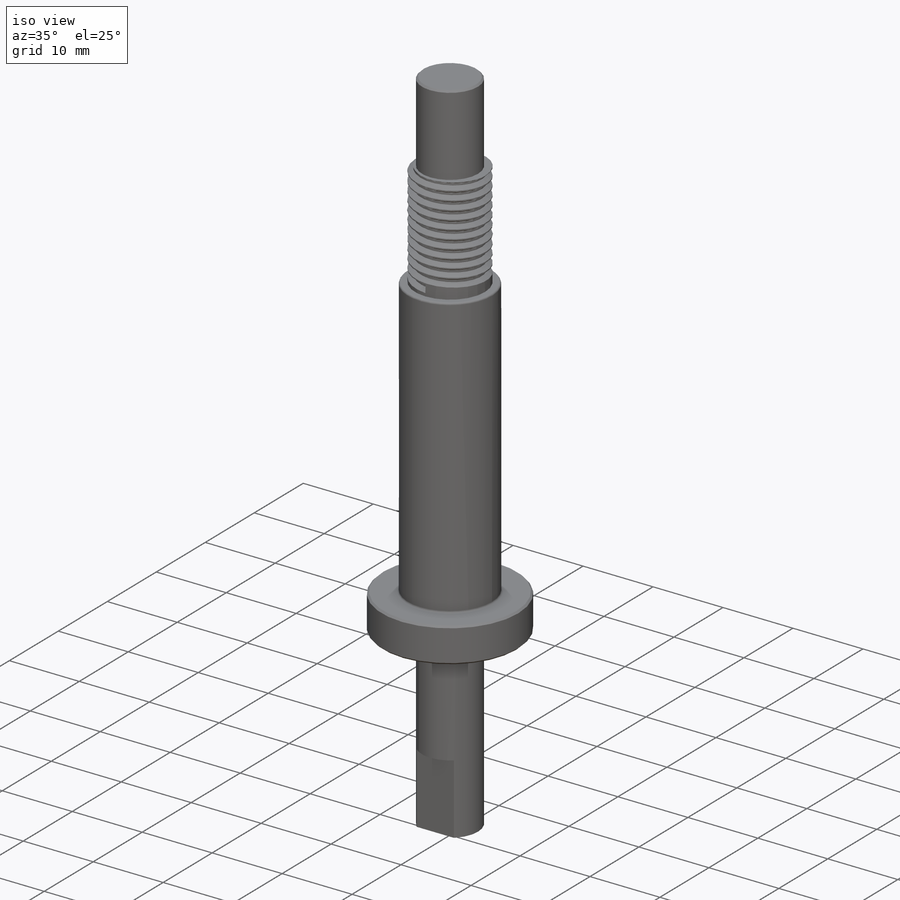
[diagram: iso view]
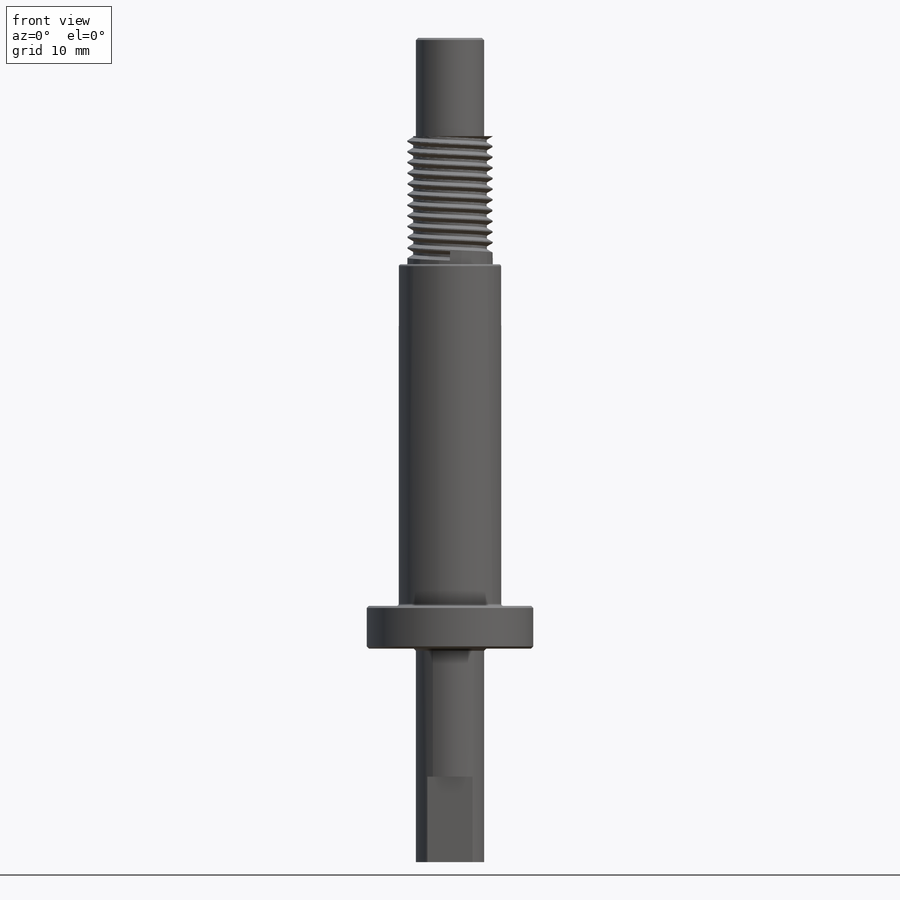
[diagram: front view]
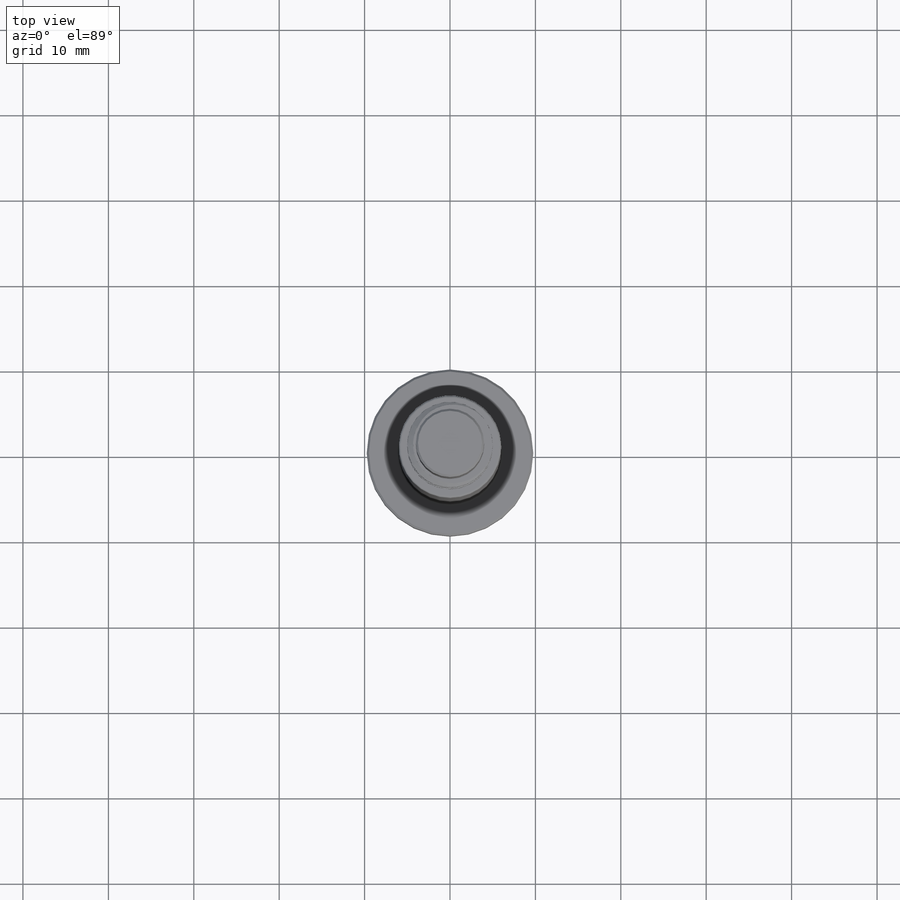
[diagram: top view]
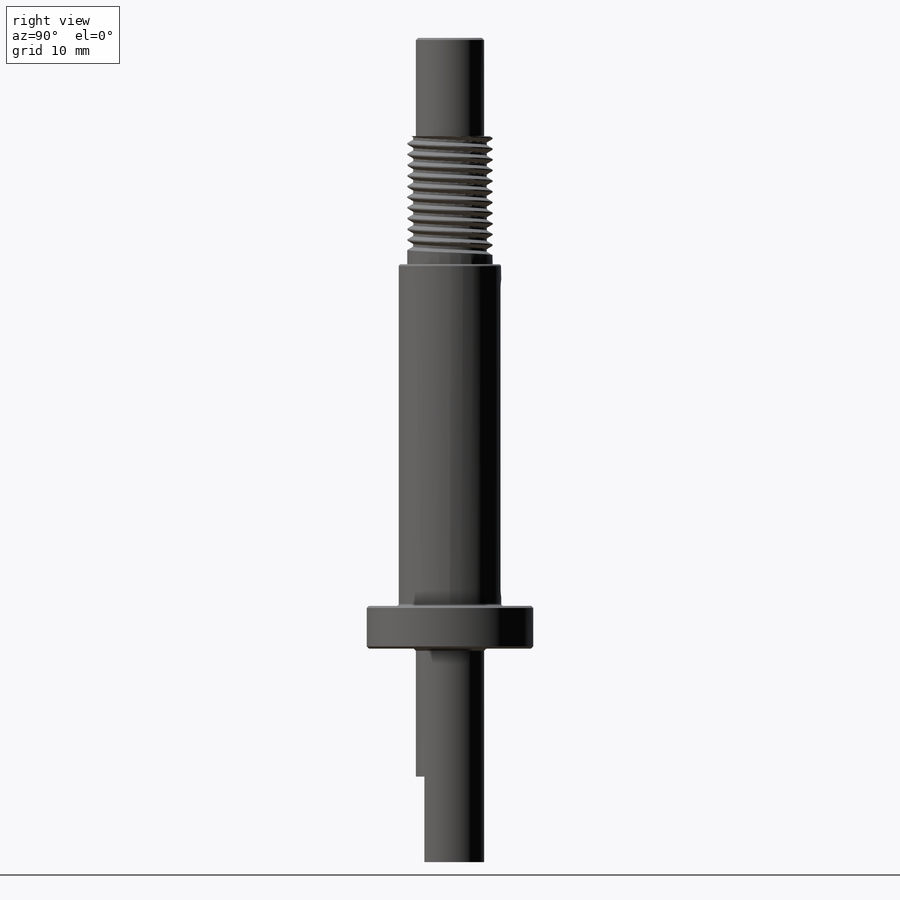
[diagram: right view]
SOLIDWORKS PART (.sldprt)
format: sldprt  version: not decoded by parser v0  size: 453,632 bytes
history: native  units: mm
features: sketch x10, extrude x5, plane x3, cut_extrude x2, chamfer x2, material x1, helix x1, sweep x1, fillet x1 (+13 scaffold rows collapsed)
feature tree (39):
  scaffold x13  (default folders/planes/origin — collapsed)
  material  "6061 Alloy"
  sketch  "Sketch1"  dims[D1=19.5mm]
  extrude  "Boss-Extrude1"  Depth=5mm
  sketch  "Sketch2"  dims[D1=12.0mm]
  extrude  "Boss-Extrude2"  Depth=40mm
  sketch  "Sketch3"  dims[D1=8.0mm]
  extrude  "Boss-Extrude3"  Depth=26.5mm
  sketch  "Sketch4"  dims[D1=8.0mm]
  extrude  "Boss-Extrude4"  Depth=25mm
  sketch  "Sketch5"  dims[D2=8.0mm D1=3.0mm]
  cut_extrude  "Cut-Extrude1"  Depth=10mm
  sketch  "Sketch10"  dims[D1=10.0mm D2=8.0mm]
  extrude  "Boss-Extrude5"  Depth=15mm
  plane  "Plane1"  Offset=1mm
  sketch  "Sketch11"
  helix  "Helix/Spiral1"  Pitch=15.3125mm
  plane  "Plane3"
  sketch  "Sketch14"  dims[c1.D1=~0.96124mm c2.D1=60.0deg c2.D2=~2.255646mm c3.D2=60.0deg c3.D3=0.32mm c3.D4=0.69mm]
  sweep  "Cut-Sweep1"
  sketch  "Sketch16"
  plane  "Plane5"
  sketch  "Sketch17"  dims[c1.D3=1.0mm c1.D1=35.2mm c1.D2=2.0mm c2.D3=2.0mm]
  fillet  "Fillet2"  Radius=0.25mm
  cut_extrude  "Cut-Extrude2"  Depth=1mm
  chamfer  "Chamfer1"  Distance=0.25mm Angle=45deg
  chamfer  "Chamfer2"  Distance=0.25mm Angle=45deg
decode coverage: 19 of 22 modeling features carry decoded parameters
note: ~ marks probable driven/reference dimensions
note: suppression state not decoded; provenance and decode notes live in map.json
